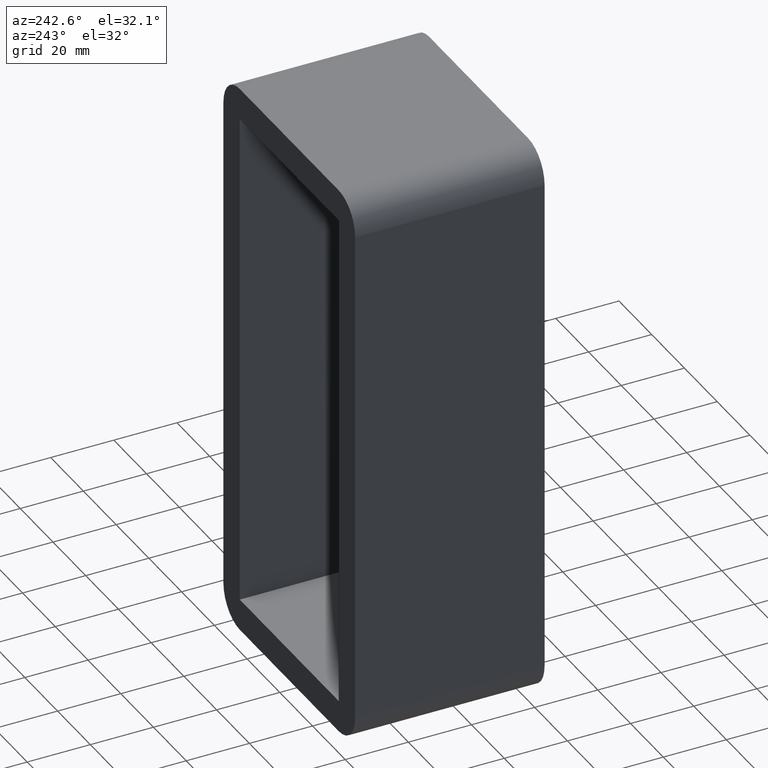
[diagram: clean part render]
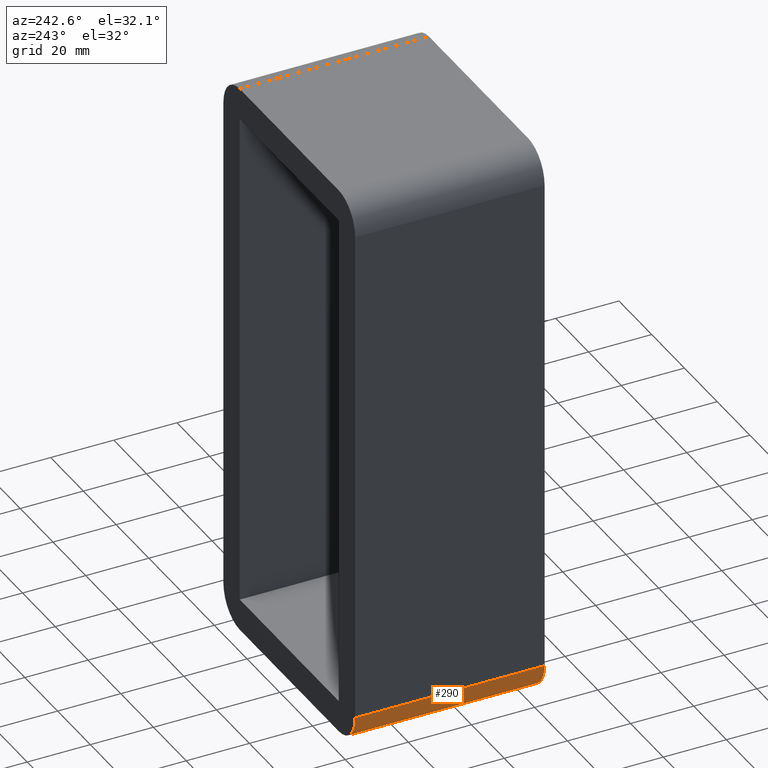
[diagram: same view with one face highlighted and labeled with its STEP entity id]
A machine part, auxiliary view. The second image highlights one B-rep face of the part: STEP entity #290.
In plain terms, the highlighted cylindrical surface (edge-blend (fillet) strip) has radius 10 mm, axis along (0, 1, 0).
Its self-contained STEP definition (entity closure, byte-faithful):
#150=CARTESIAN_POINT('',(-40.250000000000014,-3.0,-79.750000000000014));
#151=VERTEX_POINT('',#150);
#158=CARTESIAN_POINT('',(-30.250000000000014,-3.0,-89.750000000000014));
#159=VERTEX_POINT('',#158);
#160=CARTESIAN_POINT('',(-30.250000000000014,-3.0,-79.750000000000014));
#161=DIRECTION('',(0.0,1.0,0.0));
#162=DIRECTION('',(-0.707106781186547,0.0,-0.707106781186547));
#163=AXIS2_PLACEMENT_3D('',#160,#161,#162);
#164=CIRCLE('',#163,9.999999999999998);
#165=EDGE_CURVE('',#159,#151,#164,.T.);
#259=CARTESIAN_POINT('',(-30.250000000000014,0.0,-79.750000000000014));
#260=DIRECTION('',(0.0,1.0,0.0));
#261=DIRECTION('',(-0.707106781186547,0.0,-0.707106781186547));
#262=AXIS2_PLACEMENT_3D('',#259,#260,#261);
#263=CYLINDRICAL_SURFACE('',#262,10.0);
#264=CARTESIAN_POINT('',(-40.250000000000014,57.0,-79.750000000000014));
#265=VERTEX_POINT('',#264);
#266=CARTESIAN_POINT('',(-30.250000000000014,57.0,-89.750000000000014));
#267=VERTEX_POINT('',#266);
#268=CARTESIAN_POINT('',(-30.250000000000014,57.0,-79.750000000000014));
#269=DIRECTION('',(0.0,-1.0,0.0));
#270=DIRECTION('',(-0.707106781186547,0.0,-0.707106781186547));
#271=AXIS2_PLACEMENT_3D('',#268,#269,#270);
#272=CIRCLE('',#271,9.999999999999998);
#273=EDGE_CURVE('',#265,#267,#272,.T.);
#274=ORIENTED_EDGE('',*,*,#273,.T.);
#275=CARTESIAN_POINT('',(-30.250000000000014,57.0,-89.750000000000014));
#276=DIRECTION('',(0.0,-1.0,0.0));
#277=VECTOR('',#276,60.0);
#278=LINE('',#275,#277);
#279=EDGE_CURVE('',#267,#159,#278,.T.);
#280=ORIENTED_EDGE('',*,*,#279,.T.);
#281=ORIENTED_EDGE('',*,*,#165,.T.);
#282=CARTESIAN_POINT('',(-40.250000000000014,-3.0,-79.750000000000014));
#283=DIRECTION('',(0.0,1.0,0.0));
#284=VECTOR('',#283,60.0);
#285=LINE('',#282,#284);
#286=EDGE_CURVE('',#151,#265,#285,.T.);
#287=ORIENTED_EDGE('',*,*,#286,.T.);
#288=EDGE_LOOP('',(#274,#280,#281,#287));
#289=FACE_OUTER_BOUND('',#288,.T.);
#290=ADVANCED_FACE('',(#289),#263,.T.);